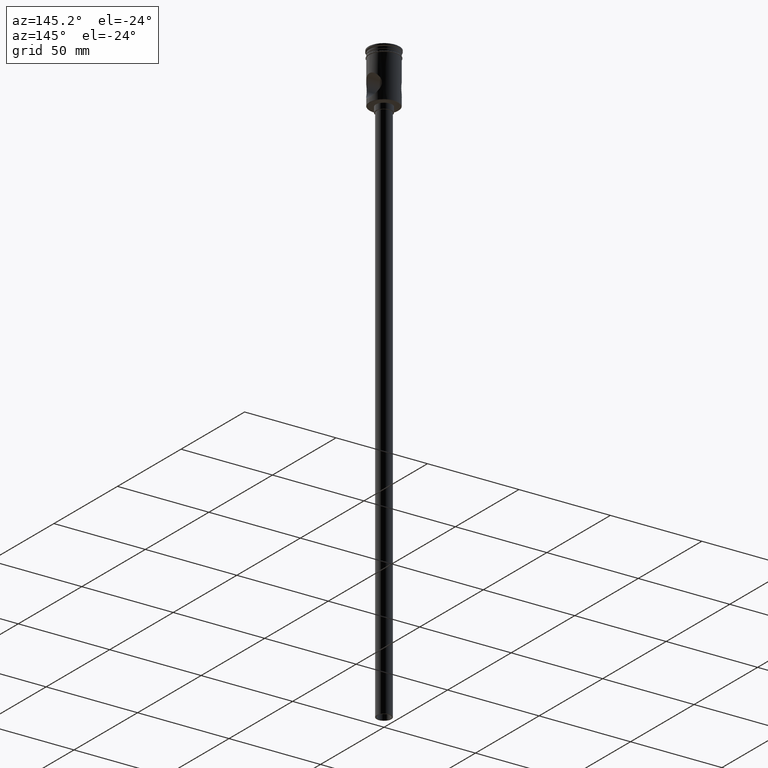
[diagram: clean part render]
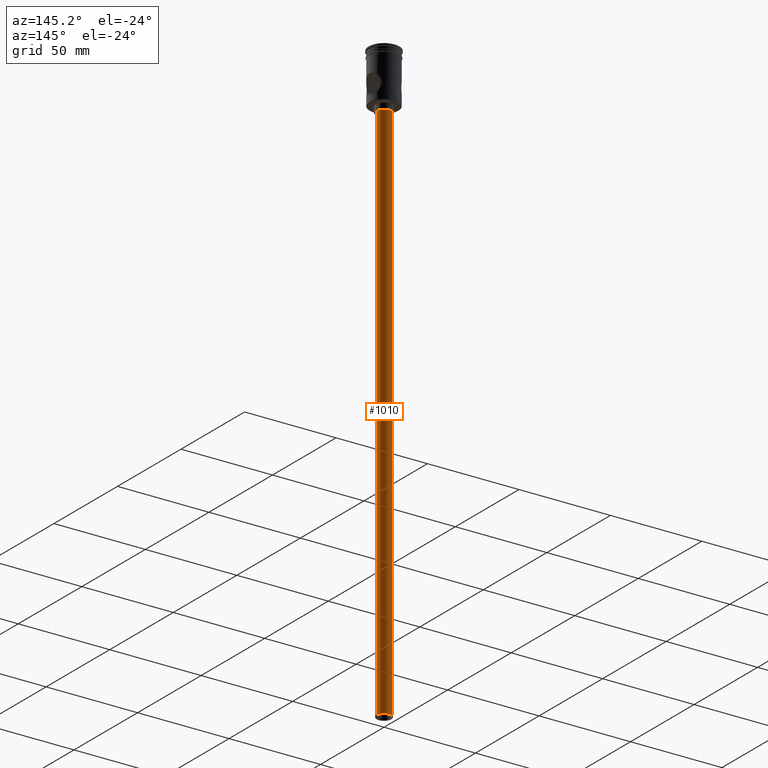
[diagram: same view with one face highlighted and labeled with its STEP entity id]
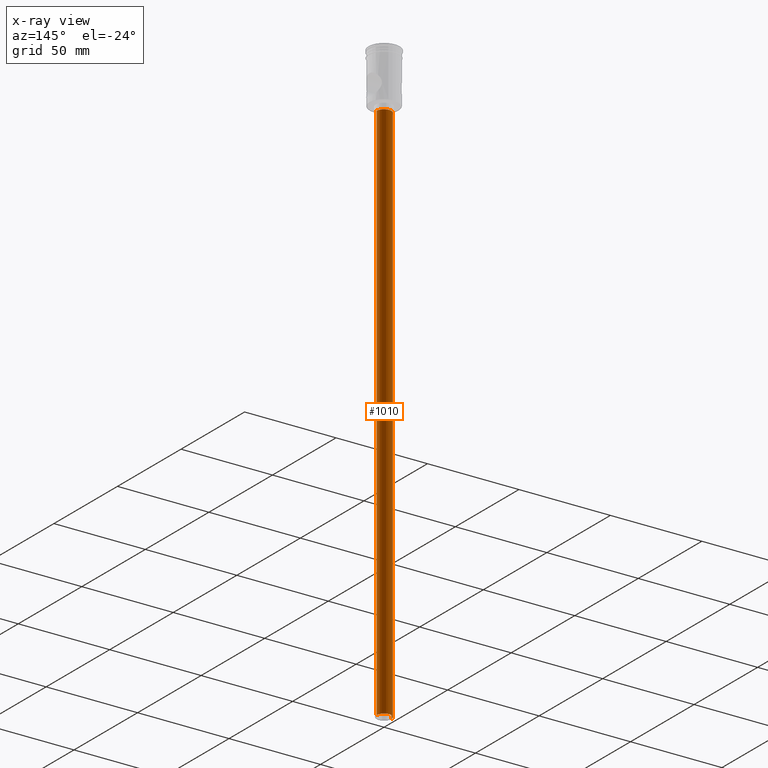
[diagram: x-ray of the same camera — body ghosted, the highlighted face saturated]
A machine part, auxiliary view. The second image highlights one B-rep face of the part: STEP entity #1010.
The next image is the same camera in x-ray: the body ghosted, the highlighted face saturated — about 0% of this face is hidden behind the body in this view.
In plain terms, the highlighted cylindrical surface (edge-blend (fillet) strip) has radius 4 mm, axis along (-0, -0, 1).
Its self-contained STEP definition (entity closure, byte-faithful):
#20 = CARTESIAN_POINT ( 'NONE',  ( 0.000000000000000000, 0.000000000000000000, -327.5000000000000000 ) ) ;
#136 = CARTESIAN_POINT ( 'NONE',  ( 4.000000000000000000, 0.000000000000000000, -327.5000000000000000 ) ) ;
#137 = EDGE_CURVE ( 'NONE', #626, #755, #732, .T. ) ;
#150 = DIRECTION ( 'NONE',  ( -0.000000000000000000, -0.000000000000000000, 1.000000000000000000 ) ) ;
#191 = CYLINDRICAL_SURFACE ( 'NONE', #360, 4.000000000000000000 ) ;
#223 = CARTESIAN_POINT ( 'NONE',  ( 4.000000000000000000, 0.000000000000000000, -30.50000000000000000 ) ) ;
#246 = EDGE_CURVE ( 'NONE', #1164, #626, #1115, .T. ) ;
#260 = EDGE_LOOP ( 'NONE', ( #840, #1329, #519, #658 ) ) ;
#275 = LINE ( 'NONE', #630, #747 ) ;
#284 = AXIS2_PLACEMENT_3D ( 'NONE', #1436, #1457, #387 ) ;
#360 = AXIS2_PLACEMENT_3D ( 'NONE', #1033, #1471, #1141 ) ;
#362 = CARTESIAN_POINT ( 'NONE',  ( -4.000000000000000000, 4.898587196589412829E-16, -327.5000000000000000 ) ) ;
#387 = DIRECTION ( 'NONE',  ( -1.000000000000000000, 0.000000000000000000, 0.000000000000000000 ) ) ;
#428 = EDGE_CURVE ( 'NONE', #1164, #928, #275, .T. ) ;
#452 = VECTOR ( 'NONE', #1072, 1000.000000000000000 ) ;
#517 = DIRECTION ( 'NONE',  ( 0.000000000000000000, 0.000000000000000000, -1.000000000000000000 ) ) ;
#519 = ORIENTED_EDGE ( 'NONE', *, *, #830, .T. ) ;
#626 = VERTEX_POINT ( 'NONE', #136 ) ;
#630 = CARTESIAN_POINT ( 'NONE',  ( -4.000000000000000000, 4.898587196589412829E-16, -327.5000000000000000 ) ) ;
#646 = AXIS2_PLACEMENT_3D ( 'NONE', #20, #517, #986 ) ;
#658 = ORIENTED_EDGE ( 'NONE', *, *, #137, .F. ) ;
#732 = LINE ( 'NONE', #1196, #452 ) ;
#747 = VECTOR ( 'NONE', #150, 1000.000000000000000 ) ;
#755 = VERTEX_POINT ( 'NONE', #223 ) ;
#830 = EDGE_CURVE ( 'NONE', #928, #755, #1484, .T. ) ;
#840 = ORIENTED_EDGE ( 'NONE', *, *, #246, .F. ) ;
#928 = VERTEX_POINT ( 'NONE', #1337 ) ;
#986 = DIRECTION ( 'NONE',  ( -1.000000000000000000, 0.000000000000000000, 0.000000000000000000 ) ) ;
#1010 = ADVANCED_FACE ( 'NONE', ( #1133 ), #191, .T. ) ;
#1033 = CARTESIAN_POINT ( 'NONE',  ( 0.000000000000000000, 0.000000000000000000, -327.5000000000000000 ) ) ;
#1072 = DIRECTION ( 'NONE',  ( -0.000000000000000000, -0.000000000000000000, 1.000000000000000000 ) ) ;
#1115 = CIRCLE ( 'NONE', #646, 4.000000000000000000 ) ;
#1133 = FACE_OUTER_BOUND ( 'NONE', #260, .T. ) ;
#1141 = DIRECTION ( 'NONE',  ( 1.000000000000000000, 0.000000000000000000, 0.000000000000000000 ) ) ;
#1164 = VERTEX_POINT ( 'NONE', #362 ) ;
#1196 = CARTESIAN_POINT ( 'NONE',  ( 4.000000000000000000, 0.000000000000000000, -327.5000000000000000 ) ) ;
#1329 = ORIENTED_EDGE ( 'NONE', *, *, #428, .T. ) ;
#1337 = CARTESIAN_POINT ( 'NONE',  ( -4.000000000000000000, 4.898587196589412829E-16, -30.50000000000000000 ) ) ;
#1436 = CARTESIAN_POINT ( 'NONE',  ( 0.000000000000000000, 0.000000000000000000, -30.50000000000000000 ) ) ;
#1457 = DIRECTION ( 'NONE',  ( 0.000000000000000000, 0.000000000000000000, -1.000000000000000000 ) ) ;
#1471 = DIRECTION ( 'NONE',  ( -0.000000000000000000, -0.000000000000000000, 1.000000000000000000 ) ) ;
#1484 = CIRCLE ( 'NONE', #284, 4.000000000000000000 ) ;